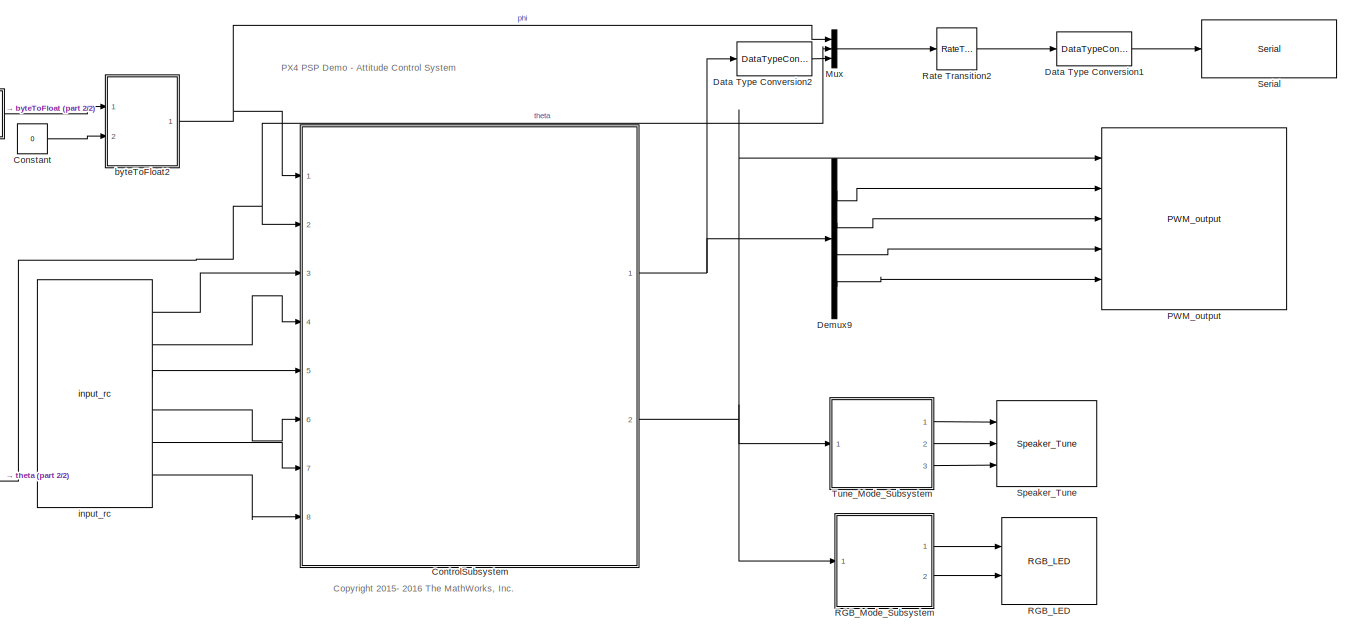
[diagram: root canvas - part 1/2, right side, full height]
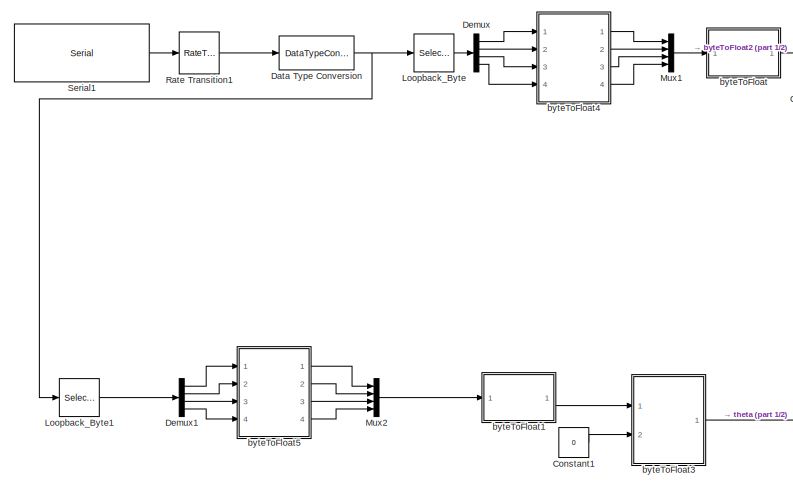
[diagram: root canvas - part 2/2, left side, full height]
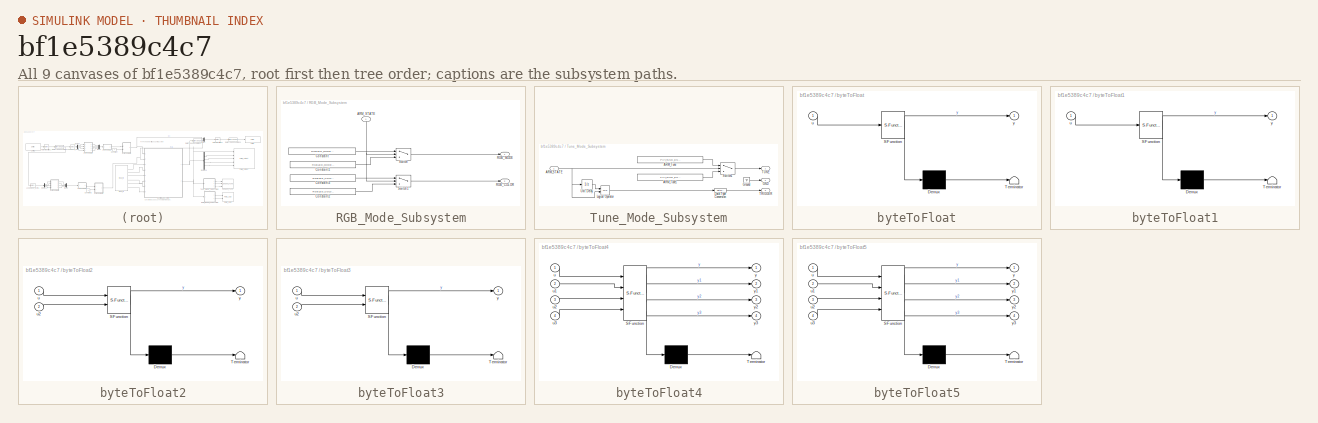
[diagram: thumbnail index - all 9 canvases of the model, root first then tree order]
MODEL slx_bf1e5389c4c7
KIND model
CONFIG AbsTol = auto
CONFIG EnableMultiTasking = off
CONFIG FixedStep = auto
CONFIG MaxStep = auto
CONFIG MinStep = auto
CONFIG PostLoadFcn = kFactor = 1.2;\n\nKpRollAttitude = 0.630138625117681 / kFactor;\nKiRollAttitude = 0.0552303199591522 / kFactor;\n\nKpPitchAttitude = 0.630138625117681 / kFactor;\nKiPitchAttitude = 0.0552303199591522 / kFactor;\n\nKpRollRate = 1.31533836563383 / kFactor;\nKiRollRate = 0.460338699849681 / kFactor;\n\nKpPitchRate = 1.31533836563383 / kFactor;\nKiPitchRate = 0.460338699849681 / kFactor;\n\nKpYawRate = 1.3153383656...<+57ch>
CONFIG RelTol = 1e-3
CONFIG SampleTimeConstraint = Unconstrained
CONFIG Solver = FixedStepAuto
CONFIG SolverName = FixedStepAuto
CONFIG StartTime = 0.0
CONFIG StopTime = inf
BLOCK [Constant] Constant
  OutDataTypeStr = single
  Value = 0
BLOCK [Constant] Constant1
  OutDataTypeStr = single
  Value = 0
BLOCK [ModelReference] ControlSubsystem
  ModelNameDialog = px4demo_attitude_control20190117TESTHIL.slx
  ModelReferenceVersion = 1.297
  Ports = [8, 2]
  Variant = off
BLOCK [DataTypeConversion] Data Type Conversion
  OutDataTypeStr = single
  RndMeth = Floor
  SaturateOnIntegerOverflow = off
BLOCK [DataTypeConversion] Data Type Conversion1
  OutDataTypeStr = single
  RndMeth = Floor
  SaturateOnIntegerOverflow = off
BLOCK [DataTypeConversion] Data Type Conversion2
  OutDataTypeStr = single
  RndMeth = Floor
  SaturateOnIntegerOverflow = off
BLOCK [Demux] Demux
  DisplayOption = bar
  Ports = [1, 4]
BLOCK [Demux] Demux1
  DisplayOption = bar
  Ports = [1, 4]
BLOCK [Demux] Demux9
  DisplayOption = bar
  Ports = [1, 4]
BLOCK [Selector] Loopback_Byte
  IndexOptions = Index vector (dialog)
  Indices = 1:4
  InputPortWidth = 8
  OutputSizes = 1
  Ports = [1, 1]
BLOCK [Selector] Loopback_Byte1
  IndexOptions = Index vector (dialog)
  Indices = 5:8
  InputPortWidth = 8
  OutputSizes = 1
  Ports = [1, 1]
BLOCK [Mux] Mux
  DisplayOption = bar
  Inputs = 3
  Ports = [3, 1]
BLOCK [Mux] Mux1
  DisplayOption = bar
  Ports = [4, 1]
BLOCK [Mux] Mux2
  DisplayOption = bar
  Ports = [4, 1]
BLOCK [Reference] PWM_output  REF=pixhawk_slib_sensors_actuators/PWM_output
  Ports = [5]
  SourceBlock = pixhawk_slib_sensors_actuators/PWM_output
  SourceType = PX4_Output_PWM
BLOCK [Reference] RGB_LED  REF=pixhawk_slib_sensors_actuators/RGB_LED
  Ports = [2]
  SourceBlock = pixhawk_slib_sensors_actuators/RGB_LED
  SourceType = PX4_RGBLED - controls the mode and color of the Pixhawk RGB LED
BLOCK [SubSystem] RGB_Mode_Subsystem
  Ports = [1, 2]
  RequestExecContextInheritance = off
  Variant = off
BLOCK [Inport] RGB_Mode_Subsystem/ARM_STATE
  IconDisplay = Port number
BLOCK [Constant] RGB_Mode_Subsystem/Constant
  OutDataTypeStr = Enum: RGBLED_MODE_ENUM
  Value = RGBLED_MODE_ENUM.MODE_BLINK_FAST
BLOCK [Constant] RGB_Mode_Subsystem/Constant1
  OutDataTypeStr = Enum: RGBLED_MODE_ENUM
  Value = RGBLED_MODE_ENUM.MODE_BREATHE
BLOCK [Constant] RGB_Mode_Subsystem/Constant2
  OutDataTypeStr = Enum: RGBLED_COLOR_ENUM
  Value = RGBLED_COLOR_ENUM.COLOR_GREEN
BLOCK [Constant] RGB_Mode_Subsystem/Constant3
  OutDataTypeStr = Enum: RGBLED_COLOR_ENUM
  Value = RGBLED_COLOR_ENUM.COLOR_RED
BLOCK [Outport] RGB_Mode_Subsystem/RGB_COLOR
  IconDisplay = Port number
  Port = 2
BLOCK [Outport] RGB_Mode_Subsystem/RGB_MODE
  IconDisplay = Port number
BLOCK [Switch] RGB_Mode_Subsystem/Switch
  Criteria = u2 ~= 0
  InputSameDT = off
  SampleTime = 1/2
  SaturateOnIntegerOverflow = off
  Threshold = 1500
BLOCK [Switch] RGB_Mode_Subsystem/Switch1
  Criteria = u2 ~= 0
  InputSameDT = off
  SampleTime = 1/2
  SaturateOnIntegerOverflow = off
  Threshold = 1500
BLOCK [RateTransition] Rate Transition1
  OutPortSampleTime = 0.3
  OutPortSampleTimeMultiple = 1.5
BLOCK [RateTransition] Rate Transition2
  Deterministic = off
  Integrity = off
  OutPortSampleTime = 1.5
  OutPortSampleTimeMultiple = 1.5
BLOCK [Reference] Serial  REF=pixhawk_slib_ADC_serial/Serial
  Ports = [1]
  SourceBlock = pixhawk_slib_ADC_serial/Serial
  SourceType = codertarget.pixhawk.blocks.SerialCOM
BLOCK [Reference] Serial1  REF=pixhawk_slib_ADC_serial/Serial
  Ports = [0, 1]
  SourceBlock = pixhawk_slib_ADC_serial/Serial
  SourceType = codertarget.pixhawk.blocks.SerialCOM
BLOCK [Reference] Speaker_Tune  REF=pixhawk_slib_sensors_actuators/Speaker_Tune
  Ports = [3]
  SourceBlock = pixhawk_slib_sensors_actuators/Speaker_Tune
  SourceType = PX4_Play_Tune - Plays a predefined tune or one based on a "string"
BLOCK [SubSystem] Tune_Mode_Subsystem
  Ports = [1, 3]
  RequestExecContextInheritance = off
  Variant = off
BLOCK [Inport] Tune_Mode_Subsystem/ARM_STATE
  IconDisplay = Port number
BLOCK [Constant] Tune_Mode_Subsystem/ARM_Tune
  OutDataTypeStr = Enum: PX4_TUNE_ENUM
  Value = PX4_TUNE_ENUM.ARMING_WARNING_TUNE
BLOCK [Constant] Tune_Mode_Subsystem/ARM_Tune1
  OutDataTypeStr = Enum: PX4_TUNE_ENUM
  Value = PX4_TUNE_ENUM.NOTIFY_POSITIVE_TUNE
BLOCK [DataTypeConversion] Tune_Mode_Subsystem/Data Type Conversion
  OutDataTypeStr = uint8
  RndMeth = Floor
  SaturateOnIntegerOverflow = off
BLOCK [Outport] Tune_Mode_Subsystem/GND
  IconDisplay = Port number
  Port = 2
BLOCK [Ground] Tune_Mode_Subsystem/Ground
BLOCK [Logic] Tune_Mode_Subsystem/Logical Operator
  AllPortsSameDT = off
  IconShape = distinctive
  Operator = XOR
  OutDataTypeStr = boolean
  Ports = [2, 1]
BLOCK [Switch] Tune_Mode_Subsystem/Switch1
  Criteria = u2 ~= 0
  InputSameDT = off
  SaturateOnIntegerOverflow = off
  Threshold = 1500
BLOCK [Outport] Tune_Mode_Subsystem/TRIGGER
  IconDisplay = Port number
  Port = 3
BLOCK [Outport] Tune_Mode_Subsystem/TUNE
  IconDisplay = Port number
BLOCK [UnitDelay] Tune_Mode_Subsystem/Unit Delay
  InputProcessing = Elements as channels (sample based)
  SampleTime = -1
BLOCK [SubSystem] byteToFloat
  ErrorFcn = Stateflow.Translate.translate
  PermitHierarchicalResolution = ExplicitOnly
  Ports = [1, 1]
  RequestExecContextInheritance = off
  SFBlockType = MATLAB Function
  TreatAsAtomicUnit = on
  Variant = off
BLOCK [Demux] byteToFloat/ Demux 
  Outputs = 1
  Ports = [1, 1]
BLOCK [S-Function] byteToFloat/ SFunction 
  EnableBusSupport = on
  FunctionName = sf_sfun
  PortCounts = [1 2]
  Ports = [1, 2]
  SFcnIsStateOwnerBlock = off
  SFunctionDeploymentMode = off
  Tag = Stateflow S-Function px4demo_attitude_system_hil 7
BLOCK [Terminator] byteToFloat/ Terminator 
BLOCK [Inport] byteToFloat/u
  IconDisplay = Port number
BLOCK [Outport] byteToFloat/y
  IconDisplay = Port number
BLOCK [SubSystem] byteToFloat1
  ErrorFcn = Stateflow.Translate.translate
  PermitHierarchicalResolution = ExplicitOnly
  Ports = [1, 1]
  RequestExecContextInheritance = off
  SFBlockType = MATLAB Function
  TreatAsAtomicUnit = on
  Variant = off
BLOCK [Demux] byteToFloat1/ Demux 
  Outputs = 1
  Ports = [1, 1]
BLOCK [S-Function] byteToFloat1/ SFunction 
  EnableBusSupport = on
  FunctionName = sf_sfun
  PortCounts = [1 2]
  Ports = [1, 2]
  SFcnIsStateOwnerBlock = off
  SFunctionDeploymentMode = off
  Tag = Stateflow S-Function px4demo_attitude_system_hil 1
BLOCK [Terminator] byteToFloat1/ Terminator 
BLOCK [Inport] byteToFloat1/u
  IconDisplay = Port number
BLOCK [Outport] byteToFloat1/y
  IconDisplay = Port number
BLOCK [SubSystem] byteToFloat2
  ErrorFcn = Stateflow.Translate.translate
  PermitHierarchicalResolution = ExplicitOnly
  Ports = [2, 1]
  RequestExecContextInheritance = off
  SFBlockType = MATLAB Function
  TreatAsAtomicUnit = on
  Variant = off
BLOCK [Demux] byteToFloat2/ Demux 
  Outputs = 1
  Ports = [1, 1]
BLOCK [S-Function] byteToFloat2/ SFunction 
  EnableBusSupport = on
  FunctionName = sf_sfun
  PortCounts = [2 2]
  Ports = [2, 2]
  SFcnIsStateOwnerBlock = off
  SFunctionDeploymentMode = off
  Tag = Stateflow S-Function px4demo_attitude_system_hil 2
BLOCK [Terminator] byteToFloat2/ Terminator 
BLOCK [Inport] byteToFloat2/u
  IconDisplay = Port number
BLOCK [Inport] byteToFloat2/u2
  IconDisplay = Port number
  Port = 2
BLOCK [Outport] byteToFloat2/y
  IconDisplay = Port number
BLOCK [SubSystem] byteToFloat3
  ErrorFcn = Stateflow.Translate.translate
  PermitHierarchicalResolution = ExplicitOnly
  Ports = [2, 1]
  RequestExecContextInheritance = off
  SFBlockType = MATLAB Function
  TreatAsAtomicUnit = on
  Variant = off
BLOCK [Demux] byteToFloat3/ Demux 
  Outputs = 1
  Ports = [1, 1]
BLOCK [S-Function] byteToFloat3/ SFunction 
  EnableBusSupport = on
  FunctionName = sf_sfun
  PortCounts = [2 2]
  Ports = [2, 2]
  SFcnIsStateOwnerBlock = off
  SFunctionDeploymentMode = off
  Tag = Stateflow S-Function px4demo_attitude_system_hil 3
BLOCK [Terminator] byteToFloat3/ Terminator 
BLOCK [Inport] byteToFloat3/u
  IconDisplay = Port number
BLOCK [Inport] byteToFloat3/u2
  IconDisplay = Port number
  Port = 2
BLOCK [Outport] byteToFloat3/y
  IconDisplay = Port number
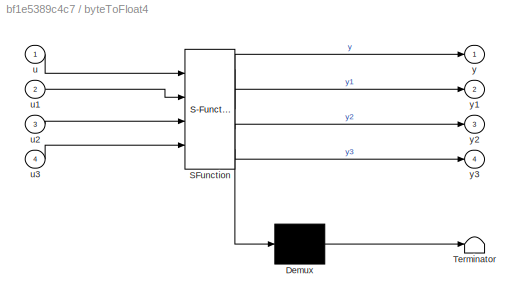
BLOCK [SubSystem] byteToFloat4
  ErrorFcn = Stateflow.Translate.translate
  PermitHierarchicalResolution = ExplicitOnly
  Ports = [4, 4]
  RequestExecContextInheritance = off
  SFBlockType = MATLAB Function
  TreatAsAtomicUnit = on
  Variant = off
BLOCK [Demux] byteToFloat4/ Demux 
  Outputs = 1
  Ports = [1, 1]
BLOCK [S-Function] byteToFloat4/ SFunction 
  EnableBusSupport = on
  FunctionName = sf_sfun
  PortCounts = [4 5]
  Ports = [4, 5]
  SFcnIsStateOwnerBlock = off
  SFunctionDeploymentMode = off
  Tag = Stateflow S-Function px4demo_attitude_system_hil 4
BLOCK [Terminator] byteToFloat4/ Terminator 
BLOCK [Inport] byteToFloat4/u
  IconDisplay = Port number
BLOCK [Inport] byteToFloat4/u1
  IconDisplay = Port number
  Port = 2
BLOCK [Inport] byteToFloat4/u2
  IconDisplay = Port number
  Port = 3
BLOCK [Inport] byteToFloat4/u3
  IconDisplay = Port number
  Port = 4
BLOCK [Outport] byteToFloat4/y
  IconDisplay = Port number
BLOCK [Outport] byteToFloat4/y1
  IconDisplay = Port number
  Port = 2
BLOCK [Outport] byteToFloat4/y2
  IconDisplay = Port number
  Port = 3
BLOCK [Outport] byteToFloat4/y3
  IconDisplay = Port number
  Port = 4
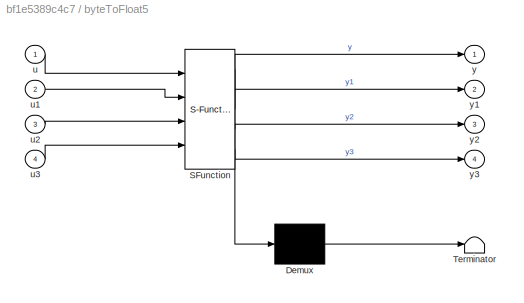
BLOCK [SubSystem] byteToFloat5
  ErrorFcn = Stateflow.Translate.translate
  PermitHierarchicalResolution = ExplicitOnly
  Ports = [4, 4]
  RequestExecContextInheritance = off
  SFBlockType = MATLAB Function
  TreatAsAtomicUnit = on
  Variant = off
BLOCK [Demux] byteToFloat5/ Demux 
  Outputs = 1
  Ports = [1, 1]
BLOCK [S-Function] byteToFloat5/ SFunction 
  EnableBusSupport = on
  FunctionName = sf_sfun
  PortCounts = [4 5]
  Ports = [4, 5]
  SFcnIsStateOwnerBlock = off
  SFunctionDeploymentMode = off
  Tag = Stateflow S-Function px4demo_attitude_system_hil 5
BLOCK [Terminator] byteToFloat5/ Terminator 
BLOCK [Inport] byteToFloat5/u
  IconDisplay = Port number
BLOCK [Inport] byteToFloat5/u1
  IconDisplay = Port number
  Port = 2
BLOCK [Inport] byteToFloat5/u2
  IconDisplay = Port number
  Port = 3
BLOCK [Inport] byteToFloat5/u3
  IconDisplay = Port number
  Port = 4
BLOCK [Outport] byteToFloat5/y
  IconDisplay = Port number
BLOCK [Outport] byteToFloat5/y1
  IconDisplay = Port number
  Port = 2
BLOCK [Outport] byteToFloat5/y2
  IconDisplay = Port number
  Port = 3
BLOCK [Outport] byteToFloat5/y3
  IconDisplay = Port number
  Port = 4
BLOCK [Reference] input_rc  REF=pixhawk_slib_sensors_actuators/input_rc
  Ports = [0, 6]
  SourceBlock = pixhawk_slib_sensors_actuators/input_rc
  SourceType = PX4_Input_RC
ANNOTATION (root): PX4 PSP Demo - Attitude Control System
ANNOTATION (root): <copyright redacted>
LINE Constant1:1 -> byteToFloat3:2
LINE Constant:1 -> byteToFloat2:2
NET ControlSubsystem:1 -> Data Type Conversion2:1, Demux9:1
NET ControlSubsystem:2 -> PWM_output:1, RGB_Mode_Subsystem:1, Tune_Mode_Subsystem:1
LINE Data Type Conversion1:1 -> Serial:1
LINE Data Type Conversion2:1 -> Mux:3
NET Data Type Conversion:1 -> Loopback_Byte1:1, Loopback_Byte:1
LINE Demux1:1 -> byteToFloat5:1
LINE Demux1:2 -> byteToFloat5:2
LINE Demux1:3 -> byteToFloat5:3
LINE Demux1:4 -> byteToFloat5:4
LINE Demux9:1 -> PWM_output:2
LINE Demux9:2 -> PWM_output:3
LINE Demux9:3 -> PWM_output:4
LINE Demux9:4 -> PWM_output:5
LINE Demux:1 -> byteToFloat4:1
LINE Demux:2 -> byteToFloat4:2
LINE Demux:3 -> byteToFloat4:3
LINE Demux:4 -> byteToFloat4:4
LINE Loopback_Byte1:1 -> Demux1:1
LINE Loopback_Byte:1 -> Demux:1
LINE Mux1:1 -> byteToFloat:1
LINE Mux2:1 -> byteToFloat1:1
LINE Mux:1 -> Rate Transition2:1
NET RGB_Mode_Subsystem/ARM_STATE:1 -> RGB_Mode_Subsystem/Switch1:2, RGB_Mode_Subsystem/Switch:2
LINE RGB_Mode_Subsystem/Constant1:1 -> RGB_Mode_Subsystem/Switch:3
LINE RGB_Mode_Subsystem/Constant2:1 -> RGB_Mode_Subsystem/Switch1:3
LINE RGB_Mode_Subsystem/Constant3:1 -> RGB_Mode_Subsystem/Switch1:1
LINE RGB_Mode_Subsystem/Constant:1 -> RGB_Mode_Subsystem/Switch:1
LINE RGB_Mode_Subsystem/Switch1:1 -> RGB_Mode_Subsystem/RGB_COLOR:1
LINE RGB_Mode_Subsystem/Switch:1 -> RGB_Mode_Subsystem/RGB_MODE:1
LINE RGB_Mode_Subsystem:1 -> RGB_LED:1
LINE RGB_Mode_Subsystem:2 -> RGB_LED:2
LINE Rate Transition1:1 -> Data Type Conversion:1
LINE Rate Transition2:1 -> Data Type Conversion1:1
LINE Serial1:1 -> Rate Transition1:1
NET Tune_Mode_Subsystem/ARM_STATE:1 -> Tune_Mode_Subsystem/Logical Operator:2, Tune_Mode_Subsystem/Switch1:2, Tune_Mode_Subsystem/Unit Delay:1
LINE Tune_Mode_Subsystem/ARM_Tune1:1 -> Tune_Mode_Subsystem/Switch1:3
LINE Tune_Mode_Subsystem/ARM_Tune:1 -> Tune_Mode_Subsystem/Switch1:1
LINE Tune_Mode_Subsystem/Data Type Conversion:1 -> Tune_Mode_Subsystem/TRIGGER:1
LINE Tune_Mode_Subsystem/Ground:1 -> Tune_Mode_Subsystem/GND:1
LINE Tune_Mode_Subsystem/Logical Operator:1 -> Tune_Mode_Subsystem/Data Type Conversion:1
LINE Tune_Mode_Subsystem/Switch1:1 -> Tune_Mode_Subsystem/TUNE:1
LINE Tune_Mode_Subsystem/Unit Delay:1 -> Tune_Mode_Subsystem/Logical Operator:1
LINE Tune_Mode_Subsystem:1 -> Speaker_Tune:1
LINE Tune_Mode_Subsystem:2 -> Speaker_Tune:2
LINE Tune_Mode_Subsystem:3 -> Speaker_Tune:3
LINE byteToFloat1:1 -> byteToFloat3:1
NET byteToFloat2:1 -> ControlSubsystem:1, Mux:1
NET byteToFloat3:1 -> ControlSubsystem:2, Mux:2
LINE byteToFloat4:1 -> Mux1:1
LINE byteToFloat4:2 -> Mux1:2
LINE byteToFloat4:3 -> Mux1:3
LINE byteToFloat4:4 -> Mux1:4
LINE byteToFloat5:1 -> Mux2:1
LINE byteToFloat5:2 -> Mux2:2
LINE byteToFloat5:3 -> Mux2:3
LINE byteToFloat5:4 -> Mux2:4
LINE byteToFloat:1 -> byteToFloat2:1
LINE input_rc:1 -> ControlSubsystem:3
LINE input_rc:2 -> ControlSubsystem:4
LINE input_rc:3 -> ControlSubsystem:5
LINE input_rc:4 -> ControlSubsystem:6
LINE input_rc:5 -> ControlSubsystem:7
LINE input_rc:6 -> ControlSubsystem:8
note: NET lines group one-source signal fan-out (src -> all destinations, sorted); 1:1 wires keep LINE
CHART byteToFloat1 states=1 transitions=1
  STATE_LABEL 'eML_blk_kernel()'
  STATE_LABEL "SCRIPT:\nfunction y = fcn(u)\n%#codegen\ny = single(0);\ny = single(typecast(uint8(u),'single'));\n% y = u;"
CHART byteToFloat2 states=1 transitions=1
  STATE_LABEL 'eML_blk_kernel()'
  STATE_LABEL 'SCRIPT:\nfunction y = fcn(u,u2)\nu1=abs(u);\nif(u1>=10)\n    y=u2;\nelseif(u1<=0.00001)\n    y=u2;\nelse\n    y=u;\nend'
CHART byteToFloat3 states=1 transitions=1
  STATE_LABEL 'eML_blk_kernel()'
  STATE_LABEL 'SCRIPT:\nfunction y = fcn(u,u2)\nu1=abs(u);\nif(u1>=10)\n    y=u2;\nelseif(u1<=0.00001)\n    y=u2;\nelse\n    y=u;\nend'
CHART byteToFloat4 states=1 transitions=1
  STATE_LABEL 'eML_blk_kernel()'
  STATE_LABEL 'SCRIPT:\nfunction [y,y1,y2,y3]= fcn(u,u1,u2,u3)\nif(u2 >= 128 && u3==255)\n    y=single(0);\n    y1=single(0);\n    y2=single(0);\n    y3=single(0);\nelse\n    y=single(u);\n    y1=single(u1);\n    y2=single(u2);\n    y3=single(u3);\nend'
CHART byteToFloat5 states=1 transitions=1
  STATE_LABEL 'eML_blk_kernel()'
  STATE_LABEL 'SCRIPT:\nfunction [y,y1,y2,y3]= fcn(u,u1,u2,u3)\nif(u2 >= 128 && u3==255)\n    y=single(0);\n    y1=single(0);\n    y2=single(0);\n    y3=single(0);\nelse\n    y=single(u);\n    y1=single(u1);\n    y2=single(u2);\n    y3=single(u3);\nend'
CHART byteToFloat states=1 transitions=1
  STATE_LABEL 'eML_blk_kernel()'
  STATE_LABEL "SCRIPT:\nfunction y = fcn(u)\n%#codegen\ny = single(0);\ny = single(typecast(uint8(u),'single'));\n% y = u;"
